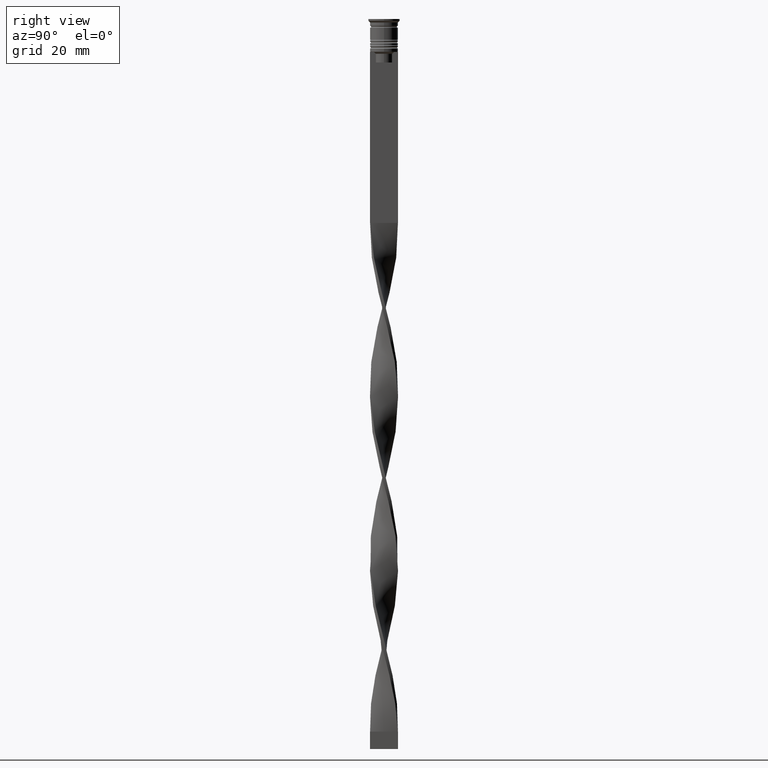
[diagram: clean part render]
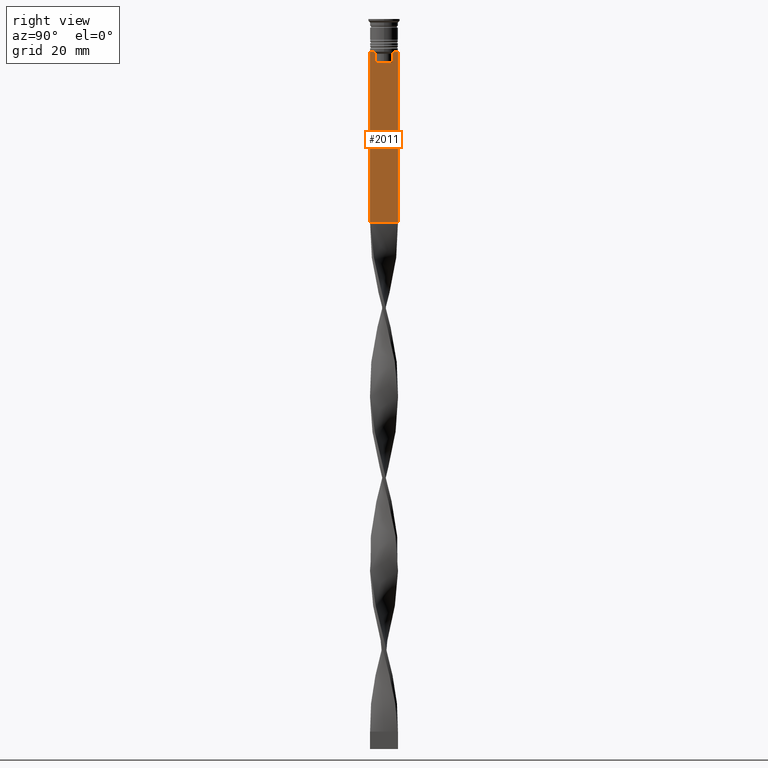
[diagram: same view with one face highlighted and labeled with its STEP entity id]
A machine part, right view. The second image highlights one B-rep face of the part: STEP entity #2011.
In plain terms, the highlighted planar face has unit normal (-1, 0, 0).
Its self-contained STEP definition (entity closure, byte-faithful):
#9 = LINE ( 'NONE', #1785, #3805 ) ;
#17 = VERTEX_POINT ( 'NONE', #3031 ) ;
#56 = VERTEX_POINT ( 'NONE', #960 ) ;
#136 = EDGE_CURVE ( 'NONE', #447, #610, #1057, .T. ) ;
#230 = VERTEX_POINT ( 'NONE', #2244 ) ;
#264 = CARTESIAN_POINT ( 'NONE',  ( 0.5000000000000000000, -4.000000000000000000, -1.437742251701450202 ) ) ;
#326 = LINE ( 'NONE', #343, #1126 ) ;
#337 = CARTESIAN_POINT ( 'NONE',  ( 0.5000000000000000000, 2.347338918861097135, -10.00000000000000000 ) ) ;
#343 = CARTESIAN_POINT ( 'NONE',  ( 0.5000000000000000000, -4.000000000000000000, -9.500000000000000000 ) ) ;
#344 = CARTESIAN_POINT ( 'NONE',  ( 0.5000000000000000000, 2.687094542495898075, -9.666938847453439010 ) ) ;
#355 = LINE ( 'NONE', #904, #1446 ) ;
#431 = VERTEX_POINT ( 'NONE', #1776 ) ;
#447 = VERTEX_POINT ( 'NONE', #3901 ) ;
#465 = VERTEX_POINT ( 'NONE', #2913 ) ;
#502 = EDGE_CURVE ( 'NONE', #230, #431, #1534, .T. ) ;
#570 = ORIENTED_EDGE ( 'NONE', *, *, #2556, .T. ) ;
#571 = EDGE_CURVE ( 'NONE', #1160, #447, #326, .T. ) ;
#572 = CARTESIAN_POINT ( 'NONE',  ( 0.5000000000000000000, -2.347338918861097135, -10.00000000000000000 ) ) ;
#610 = VERTEX_POINT ( 'NONE', #2794 ) ;
#630 = DIRECTION ( 'NONE',  ( 0.000000000000000000, 0.000000000000000000, 1.000000000000000000 ) ) ;
#637 = CARTESIAN_POINT ( 'NONE',  ( 0.5000000000000000000, -4.000000000000000000, -9.500000000000000000 ) ) ;
#678 = CARTESIAN_POINT ( 'NONE',  ( 0.5000000000000000000, -4.000000000000000000, -9.500000000000000000 ) ) ;
#710 = CARTESIAN_POINT ( 'NONE',  ( 0.5000000000000000000, -4.000000000000000000, -58.50000000000000000 ) ) ;
#877 = VERTEX_POINT ( 'NONE', #1596 ) ;
#880 = DIRECTION ( 'NONE',  ( 0.000000000000000000, -1.000000000000000000, 0.000000000000000000 ) ) ;
#904 = CARTESIAN_POINT ( 'NONE',  ( 0.5000000000000000000, 2.347338918861097135, 0.000000000000000000 ) ) ;
#960 = CARTESIAN_POINT ( 'NONE',  ( 0.5000000000000000000, -2.856571371417138572, -9.500000000000000000 ) ) ;
#979 = ORIENTED_EDGE ( 'NONE', *, *, #2474, .T. ) ;
#1006 = VECTOR ( 'NONE', #1035, 1000.000000000000000 ) ;
#1035 = DIRECTION ( 'NONE',  ( 0.000000000000000000, -1.000000000000000000, 0.000000000000000000 ) ) ;
#1057 = LINE ( 'NONE', #678, #3350 ) ;
#1107 = ORIENTED_EDGE ( 'NONE', *, *, #502, .T. ) ;
#1126 = VECTOR ( 'NONE', #1554, 1000.000000000000000 ) ;
#1146 = LINE ( 'NONE', #1223, #2858 ) ;
#1160 = VERTEX_POINT ( 'NONE', #2174 ) ;
#1223 = CARTESIAN_POINT ( 'NONE',  ( 0.5000000000000000000, -4.000000000000000000, -9.500000000000000000 ) ) ;
#1295 = FACE_OUTER_BOUND ( 'NONE', #2554, .T. ) ;
#1355 = CARTESIAN_POINT ( 'NONE',  ( 0.5000000000000000000, -2.347338918861097135, -12.50000000000000000 ) ) ;
#1378 = VECTOR ( 'NONE', #1573, 1000.000000000000000 ) ;
#1446 = VECTOR ( 'NONE', #1589, 1000.000000000000000 ) ;
#1447 = CARTESIAN_POINT ( 'NONE',  ( 0.5000000000000000000, -2.687095498514037839, -9.666937905752043037 ) ) ;
#1534 = LINE ( 'NONE', #637, #1378 ) ;
#1546 = B_SPLINE_CURVE_WITH_KNOTS ( 'NONE', 3,
 ( #2735, #344, #1555, #3920 ),
 .UNSPECIFIED., .F., .F.,
 ( 4, 4 ),
 ( 0.004956812174141191595, 0.005670477137898149653 ),
 .UNSPECIFIED. ) ;
#1554 = DIRECTION ( 'NONE',  ( 0.000000000000000000, -1.000000000000000000, 0.000000000000000000 ) ) ;
#1555 = CARTESIAN_POINT ( 'NONE',  ( 0.5000000000000000000, 2.517407211010872281, -9.833663366238582171 ) ) ;
#1559 = ORIENTED_EDGE ( 'NONE', *, *, #571, .T. ) ;
#1573 = DIRECTION ( 'NONE',  ( 0.000000000000000000, -1.000000000000000000, 0.000000000000000000 ) ) ;
#1589 = DIRECTION ( 'NONE',  ( 0.000000000000000000, 0.000000000000000000, -1.000000000000000000 ) ) ;
#1596 = CARTESIAN_POINT ( 'NONE',  ( 0.5000000000000000000, -2.347338918861097135, -10.00000000000000000 ) ) ;
#1626 = ORIENTED_EDGE ( 'NONE', *, *, #2073, .T. ) ;
#1776 = CARTESIAN_POINT ( 'NONE',  ( 0.5000000000000000000, -4.000000000000000000, -9.500000000000000000 ) ) ;
#1785 = CARTESIAN_POINT ( 'NONE',  ( 0.5000000000000000000, 4.000000000000000000, -1.437742251701450202 ) ) ;
#1805 = EDGE_CURVE ( 'NONE', #610, #2168, #1546, .T. ) ;
#1834 = AXIS2_PLACEMENT_3D ( 'NONE', #3725, #2430, #630 ) ;
#1860 = VERTEX_POINT ( 'NONE', #1355 ) ;
#1932 = DIRECTION ( 'NONE',  ( 0.000000000000000000, 1.000000000000000000, 0.000000000000000000 ) ) ;
#1956 = EDGE_CURVE ( 'NONE', #3106, #1860, #2872, .T. ) ;
#2011 = ADVANCED_FACE ( 'NONE', ( #1295 ), #2518, .F. ) ;
#2073 = EDGE_CURVE ( 'NONE', #2168, #3106, #355, .T. ) ;
#2168 = VERTEX_POINT ( 'NONE', #337 ) ;
#2174 = CARTESIAN_POINT ( 'NONE',  ( 0.5000000000000000000, 4.000000000000000000, -9.500000000000000000 ) ) ;
#2244 = CARTESIAN_POINT ( 'NONE',  ( 0.5000000000000000000, -3.867815921162741422, -9.500000000000000000 ) ) ;
#2318 = CARTESIAN_POINT ( 'NONE',  ( 0.5000000000000000000, -2.347338918861097135, 0.000000000000000000 ) ) ;
#2428 = EDGE_CURVE ( 'NONE', #1160, #465, #9, .T. ) ;
#2430 = DIRECTION ( 'NONE',  ( -1.000000000000000000, 0.000000000000000000, 0.000000000000000000 ) ) ;
#2446 = ORIENTED_EDGE ( 'NONE', *, *, #136, .T. ) ;
#2474 = EDGE_CURVE ( 'NONE', #56, #230, #1146, .T. ) ;
#2484 = VECTOR ( 'NONE', #1932, 1000.000000000000000 ) ;
#2517 = EDGE_CURVE ( 'NONE', #1860, #877, #2908, .T. ) ;
#2518 = PLANE ( 'NONE',  #1834 ) ;
#2521 = ORIENTED_EDGE ( 'NONE', *, *, #3152, .T. ) ;
#2554 = EDGE_LOOP ( 'NONE', ( #2446, #2816, #1626, #3357, #2562, #3515, #979, #1107, #570, #2521, #3510, #1559 ) ) ;
#2556 = EDGE_CURVE ( 'NONE', #431, #17, #3005, .T. ) ;
#2562 = ORIENTED_EDGE ( 'NONE', *, *, #2517, .T. ) ;
#2614 = CARTESIAN_POINT ( 'NONE',  ( 0.5000000000000000000, 2.347338918861097135, -12.50000000000000000 ) ) ;
#2735 = CARTESIAN_POINT ( 'NONE',  ( 0.5000000000000000000, 2.856571371417138572, -9.500000000000000000 ) ) ;
#2794 = CARTESIAN_POINT ( 'NONE',  ( 0.5000000000000000000, 2.856571371417138572, -9.500000000000000000 ) ) ;
#2816 = ORIENTED_EDGE ( 'NONE', *, *, #1805, .T. ) ;
#2858 = VECTOR ( 'NONE', #880, 1000.000000000000000 ) ;
#2872 = LINE ( 'NONE', #3747, #1006 ) ;
#2908 = LINE ( 'NONE', #2318, #3683 ) ;
#2913 = CARTESIAN_POINT ( 'NONE',  ( 0.5000000000000000000, 4.000000000000000000, -58.50000000000000000 ) ) ;
#3005 = LINE ( 'NONE', #264, #3044 ) ;
#3022 = DIRECTION ( 'NONE',  ( 0.000000000000000000, 0.000000000000000000, -1.000000000000000000 ) ) ;
#3031 = CARTESIAN_POINT ( 'NONE',  ( 0.5000000000000000000, -4.000000000000000000, -58.50000000000000000 ) ) ;
#3044 = VECTOR ( 'NONE', #3022, 1000.000000000000000 ) ;
#3106 = VERTEX_POINT ( 'NONE', #2614 ) ;
#3152 = EDGE_CURVE ( 'NONE', #17, #465, #3743, .T. ) ;
#3208 = EDGE_CURVE ( 'NONE', #877, #56, #3534, .T. ) ;
#3350 = VECTOR ( 'NONE', #3431, 1000.000000000000000 ) ;
#3357 = ORIENTED_EDGE ( 'NONE', *, *, #1956, .T. ) ;
#3431 = DIRECTION ( 'NONE',  ( 0.000000000000000000, -1.000000000000000000, 0.000000000000000000 ) ) ;
#3510 = ORIENTED_EDGE ( 'NONE', *, *, #2428, .F. ) ;
#3515 = ORIENTED_EDGE ( 'NONE', *, *, #3208, .T. ) ;
#3534 = B_SPLINE_CURVE_WITH_KNOTS ( 'NONE', 3,
 ( #572, #3878, #1447, #3619 ),
 .UNSPECIFIED., .F., .F.,
 ( 4, 4 ),
 ( 0.01178336557230038467, 0.01249758354768160280 ),
 .UNSPECIFIED. ) ;
#3619 = CARTESIAN_POINT ( 'NONE',  ( 0.5000000000000000000, -2.856571371417138572, -9.500000000000000000 ) ) ;
#3683 = VECTOR ( 'NONE', #3824, 1000.000000000000000 ) ;
#3725 = CARTESIAN_POINT ( 'NONE',  ( 0.5000000000000000000, -4.000000000000000000, -1.437742251701450202 ) ) ;
#3743 = LINE ( 'NONE', #710, #2484 ) ;
#3747 = CARTESIAN_POINT ( 'NONE',  ( 0.5000000000000000000, 2.399999999999996803, -12.50000000000000000 ) ) ;
#3805 = VECTOR ( 'NONE', #3873, 1000.000000000000000 ) ;
#3824 = DIRECTION ( 'NONE',  ( -0.000000000000000000, -0.000000000000000000, 1.000000000000000000 ) ) ;
#3873 = DIRECTION ( 'NONE',  ( 0.000000000000000000, 0.000000000000000000, -1.000000000000000000 ) ) ;
#3878 = CARTESIAN_POINT ( 'NONE',  ( 0.5000000000000000000, -2.517408374291112416, -9.833662228483172285 ) ) ;
#3901 = CARTESIAN_POINT ( 'NONE',  ( 0.5000000000000000000, 3.867815921162741422, -9.500000000000000000 ) ) ;
#3920 = CARTESIAN_POINT ( 'NONE',  ( 0.5000000000000000000, 2.347338918861097135, -10.00000000000000000 ) ) ;